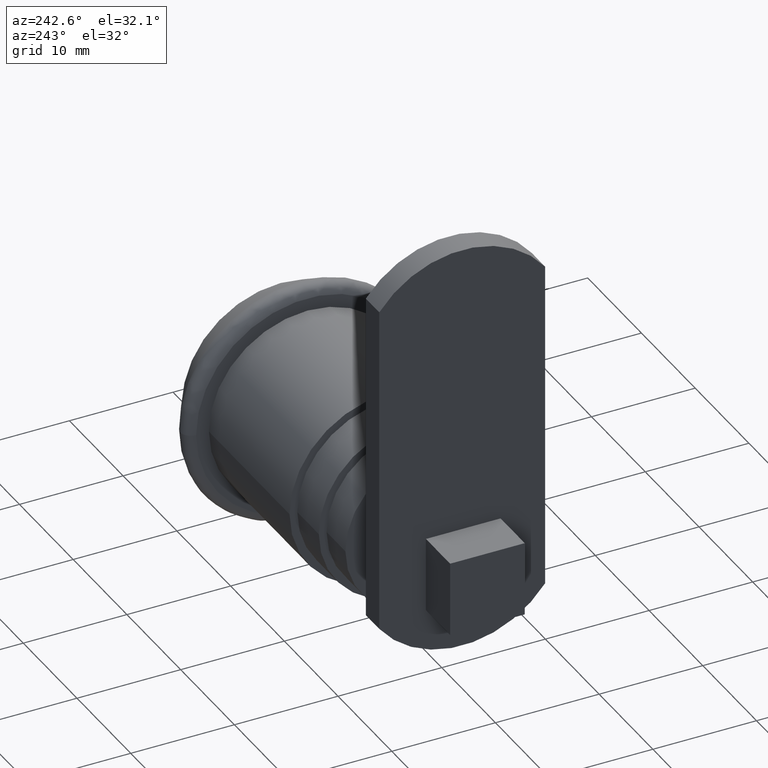
[diagram: clean part render]
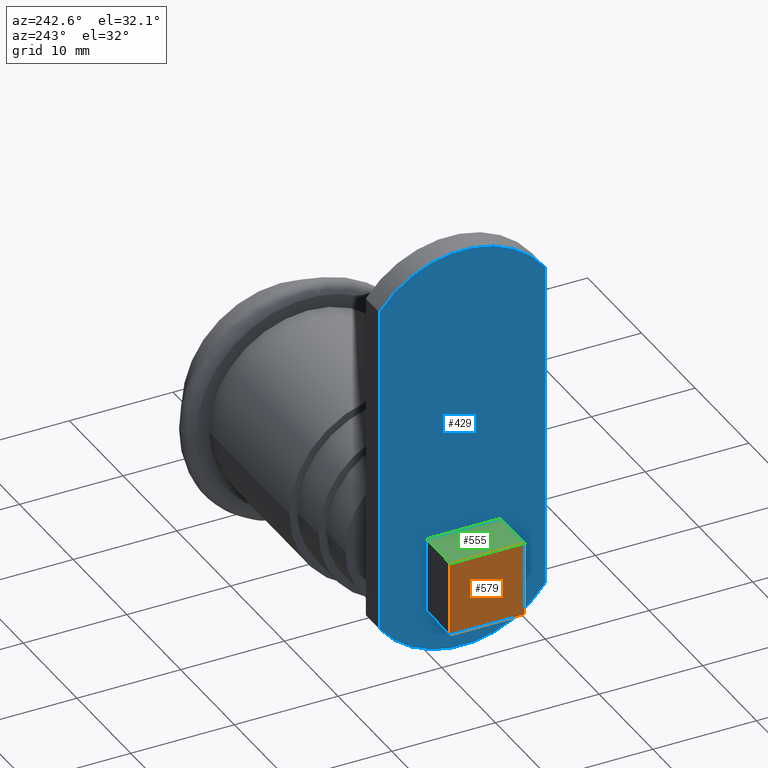
[diagram: same view with three faces highlighted in distinct colors, each labeled with its STEP entity id]
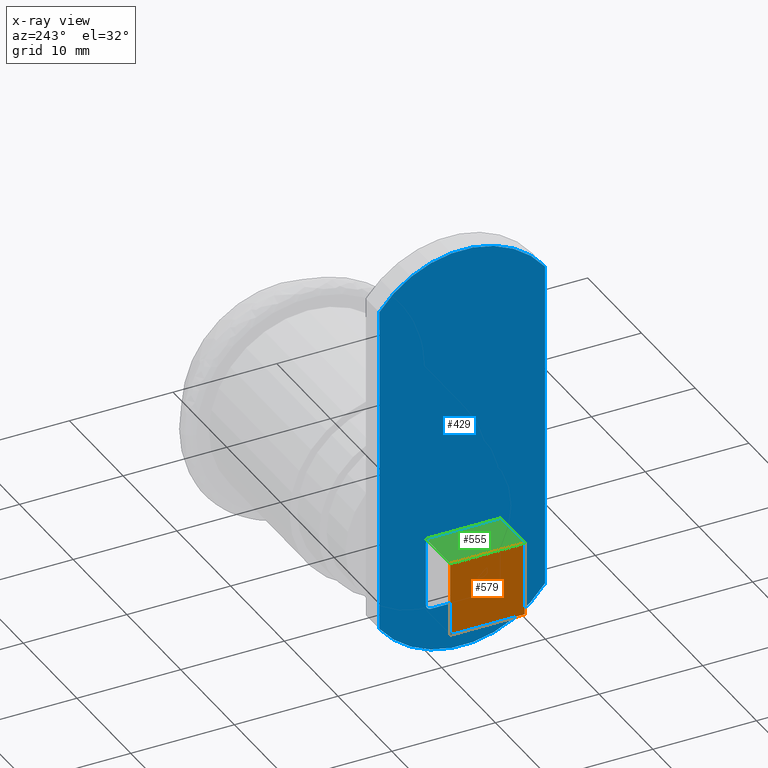
[diagram: x-ray of the same camera — body ghosted, the three highlighted faces saturated]
A machine part, auxiliary view with three faces highlighted in distinct colors.
The next image is the same camera in x-ray (body ghosted, the three faces saturated) — at least one of them is partly hidden behind the body in this view.
Their STEP definitions:

[orange] entity #579 — the highlighted planar face has unit normal (-1, 0, 0).
#447=CARTESIAN_POINT('',(-38.500000068700572,3.599999999999994,-3.600000000000009));
#448=VERTEX_POINT('',#447);
#455=CARTESIAN_POINT('',(-38.500000068700572,3.599999999999994,3.600000000000023));
#456=VERTEX_POINT('',#455);
#457=CARTESIAN_POINT('',(-38.500000068700572,3.599999999999994,3.600000000000023));
#458=DIRECTION('',(0.0,0.0,-1.0));
#459=VECTOR('',#458,7.200000000000001);
#460=LINE('',#457,#459);
#461=EDGE_CURVE('',#456,#448,#460,.T.);
#485=CARTESIAN_POINT('',(-38.500000068700572,-3.600000000000023,-3.599999999999994));
#486=VERTEX_POINT('',#485);
#493=CARTESIAN_POINT('',(-38.500000068700572,3.599999999999994,-3.600000000000009));
#494=DIRECTION('',(0.0,-1.0,0.0));
#495=VECTOR('',#494,7.199999999999999);
#496=LINE('',#493,#495);
#497=EDGE_CURVE('',#448,#486,#496,.T.);
#516=CARTESIAN_POINT('',(-38.500000068700572,-3.600000000000023,3.599999999999994));
#517=VERTEX_POINT('',#516);
#524=CARTESIAN_POINT('',(-38.500000068700572,-3.600000000000023,-3.599999999999994));
#525=DIRECTION('',(0.0,0.0,1.0));
#526=VECTOR('',#525,7.199999999999999);
#527=LINE('',#524,#526);
#528=EDGE_CURVE('',#486,#517,#527,.T.);
#546=CARTESIAN_POINT('',(-38.500000068700572,-3.600000000000023,3.599999999999994));
#547=DIRECTION('',(0.0,1.0,0.0));
#548=VECTOR('',#547,7.200000000000000);
#549=LINE('',#546,#548);
#550=EDGE_CURVE('',#517,#456,#549,.T.);
#568=CARTESIAN_POINT('',(-38.500000068700572,-4.320002148903711,-4.320002148903711));
#569=DIRECTION('',(-1.0,0.0,0.0));
#570=DIRECTION('',(0.0,0.0,1.0));
#571=AXIS2_PLACEMENT_3D('',#568,#569,#570);
#572=PLANE('',#571);
#573=ORIENTED_EDGE('',*,*,#461,.T.);
#574=ORIENTED_EDGE('',*,*,#497,.T.);
#575=ORIENTED_EDGE('',*,*,#528,.T.);
#576=ORIENTED_EDGE('',*,*,#550,.T.);
#577=EDGE_LOOP('',(#573,#574,#575,#576));
#578=FACE_OUTER_BOUND('',#577,.T.);
#579=ADVANCED_FACE('',(#578),#572,.T.);

[blue] entity #429 — the highlighted planar face has unit normal (-1, 0, 0).
#17=CARTESIAN_POINT('',(-34.000000068700558,-7.900410203737295,27.804182780090599));
#18=VERTEX_POINT('',#17);
#25=CARTESIAN_POINT('',(-34.000000068700572,-7.900410203737295,-4.195817219909358));
#26=VERTEX_POINT('',#25);
#27=CARTESIAN_POINT('',(-34.000000068700572,-7.900410203737295,-4.195817219909358));
#28=DIRECTION('',(0.0,0.0,1.0));
#29=VECTOR('',#28,31.999999999999957);
#30=LINE('',#27,#29);
#31=EDGE_CURVE('',#26,#18,#30,.T.);
#56=CARTESIAN_POINT('',(-34.000000068700558,8.099589796262734,27.804182780090599));
#57=VERTEX_POINT('',#56);
#64=CARTESIAN_POINT('',(-34.000000068700558,0.099589796262734,21.804182780090628));
#65=DIRECTION('',(-1.0,0.0,6.123234E-017));
#66=DIRECTION('',(6.123234E-017,0.0,1.0));
#67=AXIS2_PLACEMENT_3D('',#64,#65,#66);
#68=CIRCLE('',#67,10.0);
#69=EDGE_CURVE('',#18,#57,#68,.T.);
#88=CARTESIAN_POINT('',(-34.000000068700572,8.099589796262762,-4.195817219909344));
#89=VERTEX_POINT('',#88);
#96=CARTESIAN_POINT('',(-34.000000068700572,8.099589796262734,27.804182780090599));
#97=DIRECTION('',(0.0,0.0,-1.0));
#98=VECTOR('',#97,31.999999999999957);
#99=LINE('',#96,#98);
#100=EDGE_CURVE('',#57,#89,#99,.T.);
#119=CARTESIAN_POINT('',(-34.000000068700572,0.099589796262734,1.804182780090627));
#120=DIRECTION('',(-1.0,0.0,6.123234E-017));
#121=DIRECTION('',(6.123234E-017,0.0,1.0));
#122=AXIS2_PLACEMENT_3D('',#119,#120,#121);
#123=CIRCLE('',#122,10.0);
#124=EDGE_CURVE('',#89,#26,#123,.T.);
#145=CARTESIAN_POINT('',(-34.000000068700572,3.099999999999966,-3.599999999999995));
#146=VERTEX_POINT('',#145);
#153=CARTESIAN_POINT('',(-34.000000068700572,-3.100000000000023,-3.599999999999995));
#154=VERTEX_POINT('',#153);
#155=CARTESIAN_POINT('',(-34.000000068700572,-3.100000000000037,-3.599999999999995));
#156=DIRECTION('',(0.0,1.0,0.0));
#157=VECTOR('',#156,6.200000000000003);
#158=LINE('',#155,#157);
#159=EDGE_CURVE('',#154,#146,#158,.T.);
#184=CARTESIAN_POINT('',(-34.000000068700572,3.599999999999966,-3.100000000000009));
#185=VERTEX_POINT('',#184);
#192=CARTESIAN_POINT('',(-34.000000068700572,3.099999999999966,-3.099999999999995));
#193=DIRECTION('',(1.0,0.0,-6.123234E-017));
#194=DIRECTION('',(6.123234E-017,0.0,1.0));
#195=AXIS2_PLACEMENT_3D('',#192,#193,#194);
#196=CIRCLE('',#195,0.500000000000000);
#197=EDGE_CURVE('',#146,#185,#196,.T.);
#216=CARTESIAN_POINT('',(-34.000000068700572,3.599999999999966,3.099999999999994));
#217=VERTEX_POINT('',#216);
#224=CARTESIAN_POINT('',(-34.000000068700572,3.599999999999966,-3.100000000000009));
#225=DIRECTION('',(0.0,0.0,1.0));
#226=VECTOR('',#225,6.200000000000003);
#227=LINE('',#224,#226);
#228=EDGE_CURVE('',#185,#217,#227,.T.);
#248=CARTESIAN_POINT('',(-34.000000068700572,3.099999999999966,3.599999999999994));
#249=VERTEX_POINT('',#248);
#256=CARTESIAN_POINT('',(-34.000000068700572,3.099999999999966,3.099999999999994));
#257=DIRECTION('',(1.0,0.0,-6.123234E-017));
#258=DIRECTION('',(6.123234E-017,0.0,1.0));
#259=AXIS2_PLACEMENT_3D('',#256,#257,#258);
#260=CIRCLE('',#259,0.500000000000000);
#261=EDGE_CURVE('',#217,#249,#260,.T.);
#280=CARTESIAN_POINT('',(-34.000000068700572,-3.100000000000023,3.599999999999994));
#281=VERTEX_POINT('',#280);
#288=CARTESIAN_POINT('',(-34.000000068700572,3.099999999999980,3.599999999999994));
#289=DIRECTION('',(0.0,-1.0,0.0));
#290=VECTOR('',#289,6.200000000000003);
#291=LINE('',#288,#290);
#292=EDGE_CURVE('',#249,#281,#291,.T.);
#312=CARTESIAN_POINT('',(-34.000000068700572,-3.600000000000023,3.100000000000008));
#313=VERTEX_POINT('',#312);
#320=CARTESIAN_POINT('',(-34.000000068700572,-3.100000000000023,3.099999999999994));
#321=DIRECTION('',(1.0,0.0,-6.123234E-017));
#322=DIRECTION('',(6.123234E-017,0.0,1.0));
#323=AXIS2_PLACEMENT_3D('',#320,#321,#322);
#324=CIRCLE('',#323,0.500000000000000);
#325=EDGE_CURVE('',#281,#313,#324,.T.);
#344=CARTESIAN_POINT('',(-34.000000068700572,-3.600000000000023,-3.099999999999995));
#345=VERTEX_POINT('',#344);
#352=CARTESIAN_POINT('',(-34.000000068700572,-3.600000000000023,3.100000000000008));
#353=DIRECTION('',(0.0,0.0,-1.0));
#354=VECTOR('',#353,6.200000000000003);
#355=LINE('',#352,#354);
#356=EDGE_CURVE('',#313,#345,#355,.T.);
#375=CARTESIAN_POINT('',(-34.000000068700572,-3.100000000000023,-3.099999999999995));
#376=DIRECTION('',(1.0,0.0,-6.123234E-017));
#377=DIRECTION('',(6.123234E-017,0.0,1.0));
#378=AXIS2_PLACEMENT_3D('',#375,#376,#377);
#379=CIRCLE('',#378,0.500000000000000);
#380=EDGE_CURVE('',#345,#154,#379,.T.);
#408=CARTESIAN_POINT('',(-34.000000068700572,-9.500530204026461,-12.195937220235692));
#409=DIRECTION('',(-1.0,0.0,0.0));
#410=DIRECTION('',(0.0,0.0,1.0));
#411=AXIS2_PLACEMENT_3D('',#408,#409,#410);
#412=PLANE('',#411);
#413=ORIENTED_EDGE('',*,*,#31,.T.);
#414=ORIENTED_EDGE('',*,*,#69,.T.);
#415=ORIENTED_EDGE('',*,*,#100,.T.);
#416=ORIENTED_EDGE('',*,*,#124,.T.);
#417=EDGE_LOOP('',(#413,#414,#415,#416));
#418=FACE_OUTER_BOUND('',#417,.T.);
#419=ORIENTED_EDGE('',*,*,#159,.T.);
#420=ORIENTED_EDGE('',*,*,#197,.T.);
#421=ORIENTED_EDGE('',*,*,#228,.T.);
#422=ORIENTED_EDGE('',*,*,#261,.T.);
#423=ORIENTED_EDGE('',*,*,#292,.T.);
#424=ORIENTED_EDGE('',*,*,#325,.T.);
#425=ORIENTED_EDGE('',*,*,#356,.T.);
#426=ORIENTED_EDGE('',*,*,#380,.T.);
#427=EDGE_LOOP('',(#419,#420,#421,#422,#423,#424,#425,#426));
#428=FACE_BOUND('',#427,.T.);
#429=ADVANCED_FACE('',(#418,#428),#412,.T.);

[green] entity #555 — the highlighted planar face has unit normal (0, 0, 1).
#437=CARTESIAN_POINT('',(-27.500000000000014,3.599999999999994,3.600000000000023));
#438=VERTEX_POINT('',#437);
#455=CARTESIAN_POINT('',(-38.500000068700572,3.599999999999994,3.600000000000023));
#456=VERTEX_POINT('',#455);
#463=CARTESIAN_POINT('',(-27.500000000000014,3.599999999999994,3.600000000000023));
#464=DIRECTION('',(-1.0,0.0,0.0));
#465=VECTOR('',#464,11.000000068700558);
#466=LINE('',#463,#465);
#467=EDGE_CURVE('',#438,#456,#466,.T.);
#508=CARTESIAN_POINT('',(-27.500000000000014,-3.600000000000023,3.599999999999994));
#509=VERTEX_POINT('',#508);
#516=CARTESIAN_POINT('',(-38.500000068700572,-3.600000000000023,3.599999999999994));
#517=VERTEX_POINT('',#516);
#518=CARTESIAN_POINT('',(-27.500000000000014,-3.600000000000023,3.599999999999994));
#519=DIRECTION('',(-1.0,0.0,0.0));
#520=VECTOR('',#519,11.000000068700558);
#521=LINE('',#518,#520);
#522=EDGE_CURVE('',#509,#517,#521,.T.);
#534=CARTESIAN_POINT('',(-27.500000000000014,-3.600000000000023,3.599999999999994));
#535=DIRECTION('',(0.0,0.0,1.0));
#536=DIRECTION('',(0.0,1.0,0.0));
#537=AXIS2_PLACEMENT_3D('',#534,#535,#536);
#538=PLANE('',#537);
#539=CARTESIAN_POINT('',(-27.500000000000014,-3.600000000000023,3.599999999999994));
#540=DIRECTION('',(0.0,1.0,0.0));
#541=VECTOR('',#540,7.200000000000000);
#542=LINE('',#539,#541);
#543=EDGE_CURVE('',#509,#438,#542,.T.);
#544=ORIENTED_EDGE('',*,*,#543,.T.);
#545=ORIENTED_EDGE('',*,*,#467,.T.);
#546=CARTESIAN_POINT('',(-38.500000068700572,-3.600000000000023,3.599999999999994));
#547=DIRECTION('',(0.0,1.0,0.0));
#548=VECTOR('',#547,7.200000000000000);
#549=LINE('',#546,#548);
#550=EDGE_CURVE('',#517,#456,#549,.T.);
#551=ORIENTED_EDGE('',*,*,#550,.F.);
#552=ORIENTED_EDGE('',*,*,#522,.F.);
#553=EDGE_LOOP('',(#544,#545,#551,#552));
#554=FACE_OUTER_BOUND('',#553,.T.);
#555=ADVANCED_FACE('',(#554),#538,.T.);